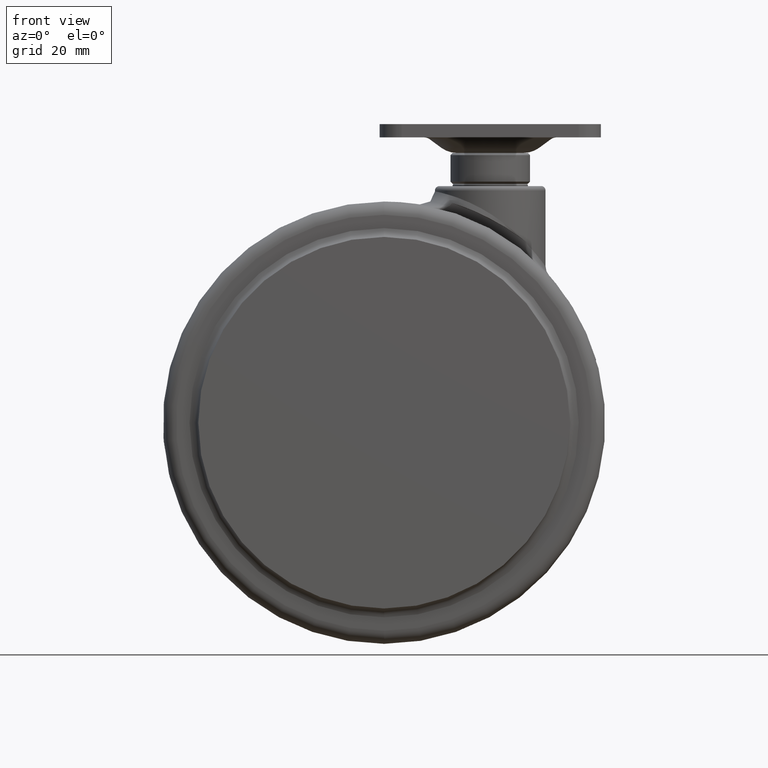
[diagram: clean part render]
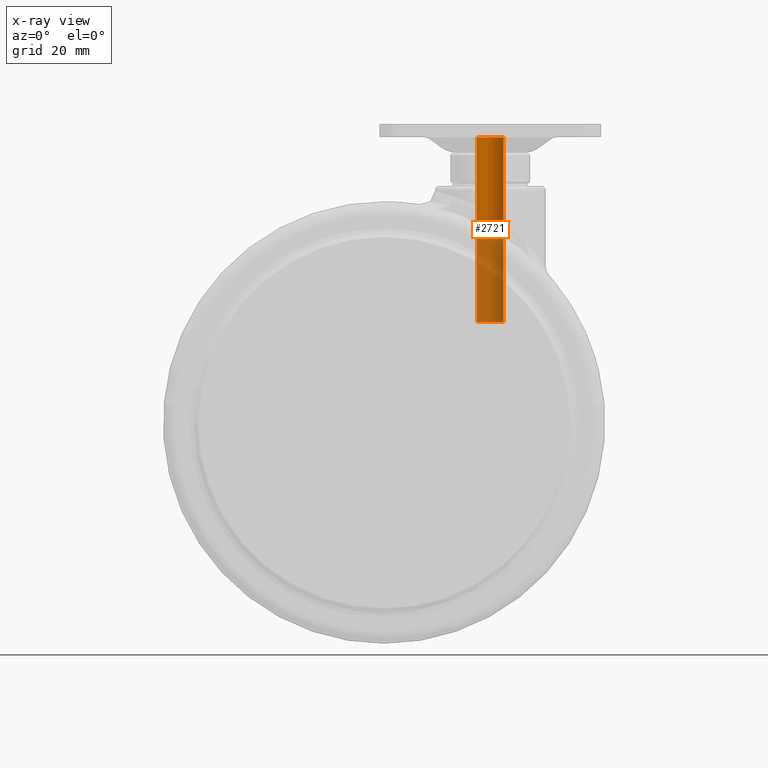
[diagram: x-ray — body ghosted, one internal face saturated and labeled with its STEP entity id]
A machine part, front view, then the same camera in x-ray: the body is ghosted and one INTERNAL B-rep face — a face not visible from any outside direction — is saturated and labeled: STEP entity #2721.
In plain terms, the highlighted cylindrical surface (edge-blend (fillet) strip) has radius 3 mm, axis along (0, 0, -1).
Its self-contained STEP definition (entity closure, byte-faithful):
#117 = ORIENTED_EDGE ( 'NONE', *, *, #4818, .F. ) ;
#823 = CARTESIAN_POINT ( 'NONE',  ( 3.000000000000000000, 3.673940397442059900E-016, -30.80000000000000100 ) ) ;
#879 = CARTESIAN_POINT ( 'NONE',  ( 0.0000000000000000000, 0.0000000000000000000, 11.00000000000000000 ) ) ;
#1194 = DIRECTION ( 'NONE',  ( 0.0000000000000000000, 0.0000000000000000000, -1.000000000000000000 ) ) ;
#1229 = CARTESIAN_POINT ( 'NONE',  ( 0.0000000000000000000, 0.0000000000000000000, 0.0000000000000000000 ) ) ;
#1282 = DIRECTION ( 'NONE',  ( -1.000000000000000000, 0.0000000000000000000, 0.0000000000000000000 ) ) ;
#1431 = FACE_OUTER_BOUND ( 'NONE', #1991, .T. ) ;
#1553 = DIRECTION ( 'NONE',  ( 0.0000000000000000000, 0.0000000000000000000, -1.000000000000000000 ) ) ;
#1667 = LINE ( 'NONE', #5313, #3610 ) ;
#1991 = EDGE_LOOP ( 'NONE', ( #4449, #4971, #4297, #117 ) ) ;
#2000 = CARTESIAN_POINT ( 'NONE',  ( -3.000000000000000000, 0.0000000000000000000, 11.00000000000000000 ) ) ;
#2124 = AXIS2_PLACEMENT_3D ( 'NONE', #1229, #1194, #3712 ) ;
#2142 = CARTESIAN_POINT ( 'NONE',  ( -3.000000000000000000, 0.0000000000000000000, -30.80000000000000100 ) ) ;
#2181 = EDGE_CURVE ( 'NONE', #2241, #4125, #1667, .T. ) ;
#2241 = VERTEX_POINT ( 'NONE', #4123 ) ;
#2288 = EDGE_CURVE ( 'NONE', #4910, #2241, #5282, .T. ) ;
#2413 = CYLINDRICAL_SURFACE ( 'NONE', #2124, 3.000000000000000000 ) ;
#2560 = CIRCLE ( 'NONE', #3244, 3.000000000000000000 ) ;
#2721 = ADVANCED_FACE ( 'NONE', ( #1431 ), #2413, .T. ) ;
#2864 = DIRECTION ( 'NONE',  ( 0.0000000000000000000, 0.0000000000000000000, -1.000000000000000000 ) ) ;
#3244 = AXIS2_PLACEMENT_3D ( 'NONE', #4030, #1553, #4428 ) ;
#3335 = VERTEX_POINT ( 'NONE', #2142 ) ;
#3523 = VECTOR ( 'NONE', #3576, 1000.000000000000000 ) ;
#3565 = EDGE_CURVE ( 'NONE', #3335, #4125, #2560, .T. ) ;
#3576 = DIRECTION ( 'NONE',  ( 0.0000000000000000000, 0.0000000000000000000, -1.000000000000000000 ) ) ;
#3610 = VECTOR ( 'NONE', #2864, 1000.000000000000000 ) ;
#3712 = DIRECTION ( 'NONE',  ( -1.000000000000000000, 0.0000000000000000000, 0.0000000000000000000 ) ) ;
#3769 = DIRECTION ( 'NONE',  ( 0.0000000000000000000, 0.0000000000000000000, -1.000000000000000000 ) ) ;
#4030 = CARTESIAN_POINT ( 'NONE',  ( 0.0000000000000000000, 0.0000000000000000000, -30.80000000000000100 ) ) ;
#4123 = CARTESIAN_POINT ( 'NONE',  ( 3.000000000000000000, 3.673940397442059900E-016, 11.00000000000000000 ) ) ;
#4125 = VERTEX_POINT ( 'NONE', #823 ) ;
#4297 = ORIENTED_EDGE ( 'NONE', *, *, #3565, .F. ) ;
#4428 = DIRECTION ( 'NONE',  ( -1.000000000000000000, 0.0000000000000000000, 0.0000000000000000000 ) ) ;
#4449 = ORIENTED_EDGE ( 'NONE', *, *, #2288, .T. ) ;
#4472 = LINE ( 'NONE', #5240, #3523 ) ;
#4498 = AXIS2_PLACEMENT_3D ( 'NONE', #879, #3769, #1282 ) ;
#4818 = EDGE_CURVE ( 'NONE', #4910, #3335, #4472, .T. ) ;
#4910 = VERTEX_POINT ( 'NONE', #2000 ) ;
#4971 = ORIENTED_EDGE ( 'NONE', *, *, #2181, .T. ) ;
#5240 = CARTESIAN_POINT ( 'NONE',  ( -3.000000000000000000, 0.0000000000000000000, 0.0000000000000000000 ) ) ;
#5282 = CIRCLE ( 'NONE', #4498, 3.000000000000000000 ) ;
#5313 = CARTESIAN_POINT ( 'NONE',  ( 3.000000000000000000, 3.673940397442059900E-016, 0.0000000000000000000 ) ) ;